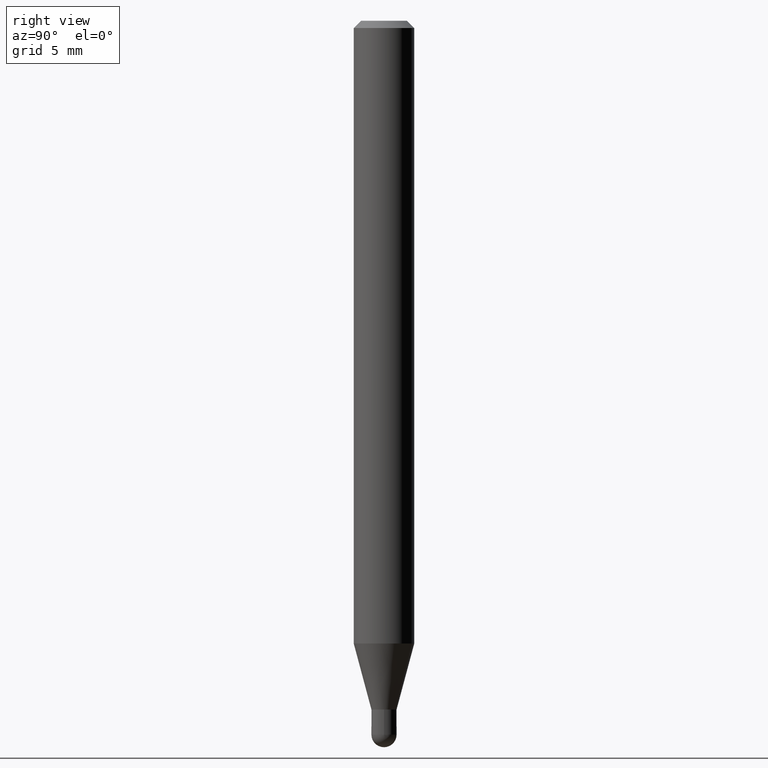
[diagram: clean part render]
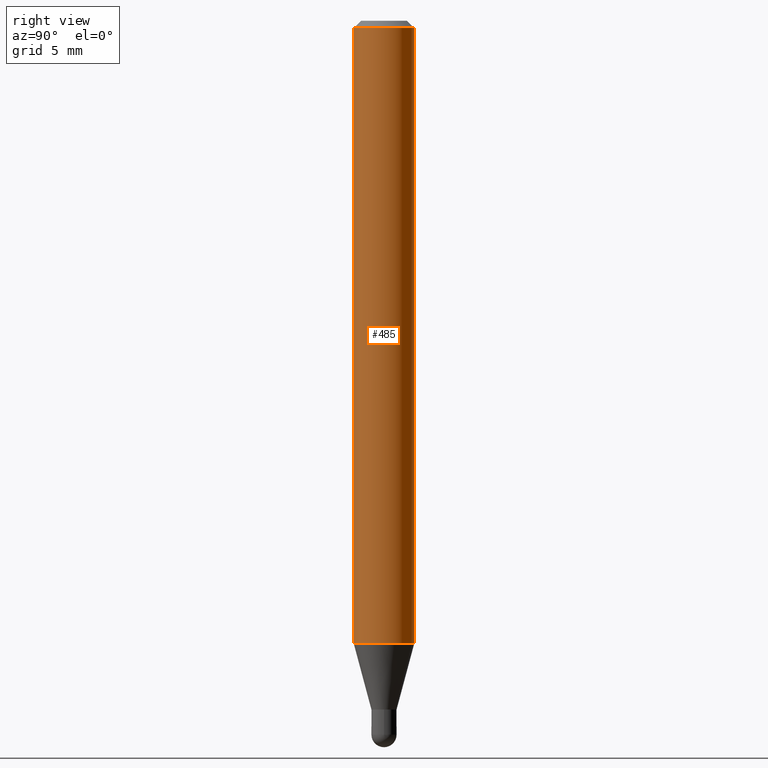
[diagram: same view with one face highlighted and labeled with its STEP entity id]
A machine part, right view. The second image highlights one B-rep face of the part: STEP entity #485.
In plain terms, the highlighted cylindrical surface (edge-blend (fillet) strip) has radius 1.5875 mm, axis along (-0, 0, 1).
Its self-contained STEP definition (entity closure, byte-faithful):
#17 = ORIENTED_EDGE ( 'NONE', *, *, #35, .T. ) ;
#35 = EDGE_CURVE ( 'NONE', #171, #178, #357, .T. ) ;
#57 = FACE_OUTER_BOUND ( 'NONE', #304, .T. ) ;
#58 = DIRECTION ( 'NONE',  ( -2.445468490087946806E-29, 3.491481791512312384E-15, 1.000000000000000000 ) ) ;
#64 = EDGE_CURVE ( 'NONE', #178, #483, #462, .T. ) ;
#75 = VECTOR ( 'NONE', #424, 39.37007874015748143 ) ;
#98 = DIRECTION ( 'NONE',  ( -6.982962677686265922E-15, -1.000000000000000000, 3.491481791512312384E-15 ) ) ;
#118 = CARTESIAN_POINT ( 'NONE',  ( -4.364351673553916201E-16, -0.06250000000000000000, 2.182176119695195240E-16 ) ) ;
#127 = EDGE_CURVE ( 'NONE', #171, #440, #387, .T. ) ;
#153 = EDGE_CURVE ( 'NONE', #440, #483, #290, .T. ) ;
#158 = CARTESIAN_POINT ( 'NONE',  ( 3.668202735131936832E-31, -5.237222687268491576E-17, -0.01500000000000006710 ) ) ;
#171 = VERTEX_POINT ( 'NONE', #512 ) ;
#178 = VERTEX_POINT ( 'NONE', #315 ) ;
#185 = CYLINDRICAL_SURFACE ( 'NONE', #433, 0.06250000000000000000 ) ;
#193 = CARTESIAN_POINT ( 'NONE',  ( 3.144334831059003707E-29, -4.489277965984193733E-15, -1.285780145523741202 ) ) ;
#258 = CARTESIAN_POINT ( 'NONE',  ( 4.440892098500941706E-16, 0.06249999999999995143, -0.01500000000000028394 ) ) ;
#262 = DIRECTION ( 'NONE',  ( -6.982962677686265922E-15, -1.000000000000000000, 4.370956789862821150E-15 ) ) ;
#270 = AXIS2_PLACEMENT_3D ( 'NONE', #193, #58, #262 ) ;
#290 = CIRCLE ( 'NONE', #332, 0.06250000000000000000 ) ;
#304 = EDGE_LOOP ( 'NONE', ( #17, #429, #370, #351 ) ) ;
#310 = DIRECTION ( 'NONE',  ( -2.445468490087946806E-29, 3.491481791512312384E-15, 1.000000000000000000 ) ) ;
#315 = CARTESIAN_POINT ( 'NONE',  ( 4.440892098500937762E-16, 0.06249999999999548972, -1.285780145523741425 ) ) ;
#332 = AXIS2_PLACEMENT_3D ( 'NONE', #158, #310, #465 ) ;
#337 = DIRECTION ( 'NONE',  ( -2.445468490087946806E-29, 3.491481791512312384E-15, 1.000000000000000000 ) ) ;
#351 = ORIENTED_EDGE ( 'NONE', *, *, #127, .F. ) ;
#354 = CARTESIAN_POINT ( 'NONE',  ( 4.440892098500625669E-16, 0.06250000000000000000, -2.182176119695195240E-16 ) ) ;
#357 = CIRCLE ( 'NONE', #270, 0.06250000000000000000 ) ;
#370 = ORIENTED_EDGE ( 'NONE', *, *, #153, .F. ) ;
#381 = CARTESIAN_POINT ( 'NONE',  ( -4.364351673553912750E-16, -0.06250000000000005551, -0.01499999999999984852 ) ) ;
#387 = LINE ( 'NONE', #118, #510 ) ;
#394 = DIRECTION ( 'NONE',  ( -2.445468490087946806E-29, 3.491481791512312778E-15, 1.000000000000000000 ) ) ;
#424 = DIRECTION ( 'NONE',  ( -2.445468490087946806E-29, 3.491481791512312778E-15, 1.000000000000000000 ) ) ;
#429 = ORIENTED_EDGE ( 'NONE', *, *, #64, .T. ) ;
#433 = AXIS2_PLACEMENT_3D ( 'NONE', #453, #337, #98 ) ;
#440 = VERTEX_POINT ( 'NONE', #381 ) ;
#453 = CARTESIAN_POINT ( 'NONE',  ( 0.000000000000000000, 0.000000000000000000, 0.000000000000000000 ) ) ;
#462 = LINE ( 'NONE', #354, #75 ) ;
#465 = DIRECTION ( 'NONE',  ( -6.982962677686265922E-15, -1.000000000000000000, 3.483106191921935554E-15 ) ) ;
#483 = VERTEX_POINT ( 'NONE', #258 ) ;
#485 = ADVANCED_FACE ( 'NONE', ( #57 ), #185, .T. ) ;
#510 = VECTOR ( 'NONE', #394, 39.37007874015748143 ) ;
#512 = CARTESIAN_POINT ( 'NONE',  ( -4.364351673553603615E-16, -0.06250000000000451028, -1.285780145523740758 ) ) ;